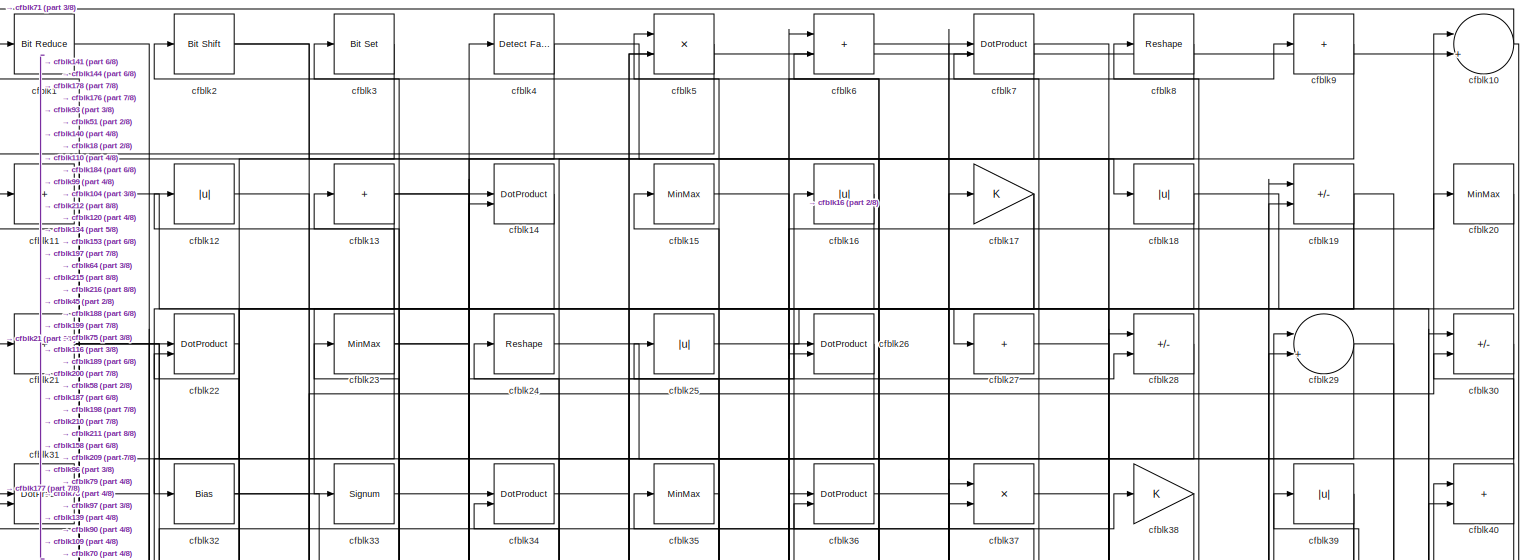
[diagram: root canvas - part 1/8, full width, top band]
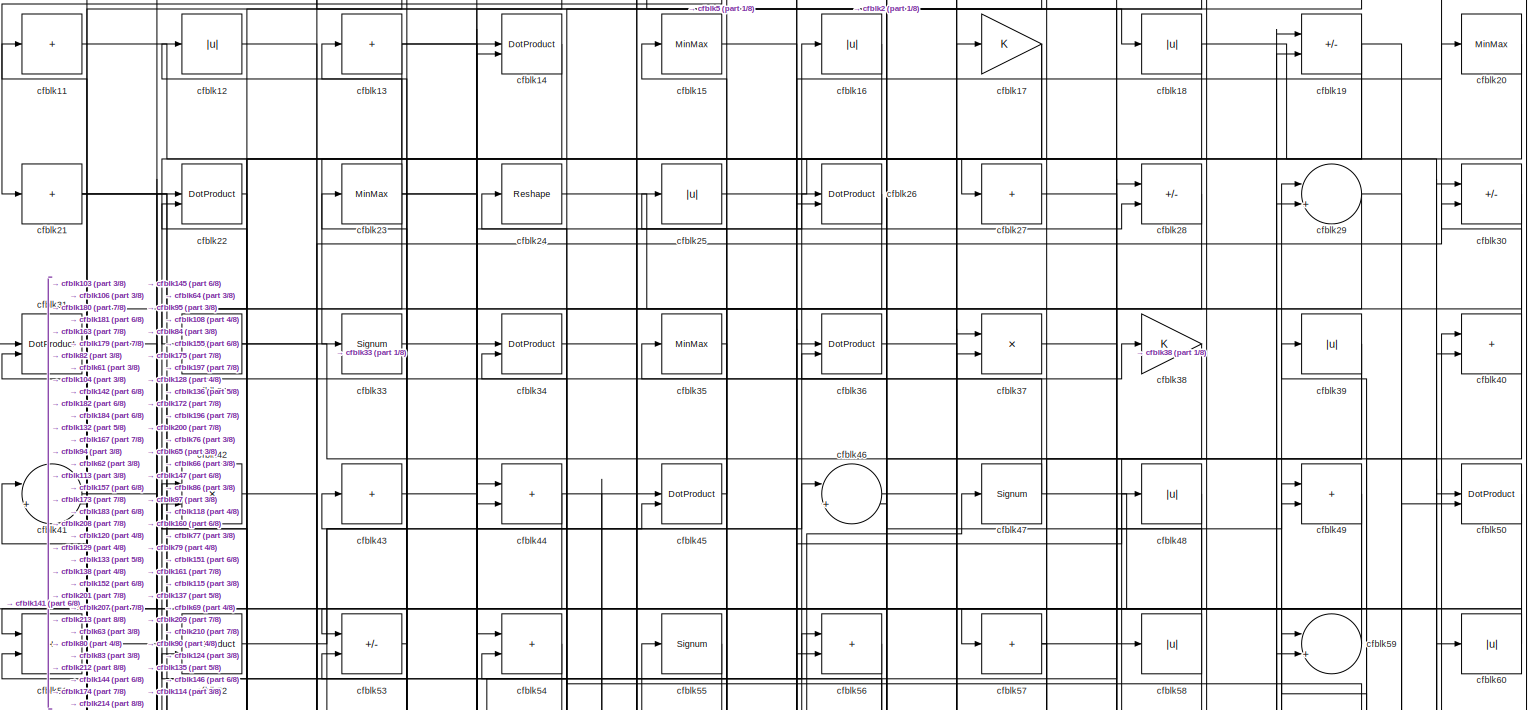
[diagram: root canvas - part 2/8, full width, top band]
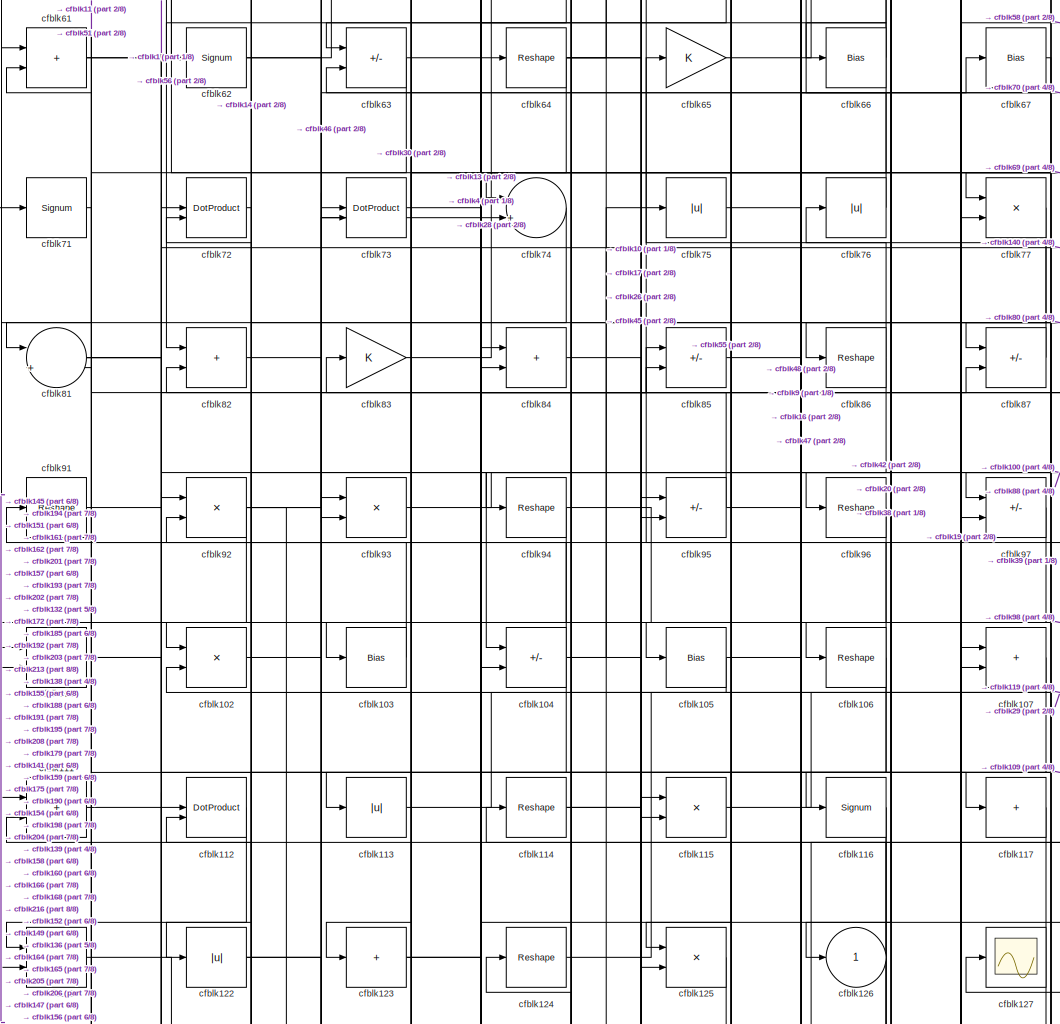
[diagram: root canvas - part 3/8, central region]
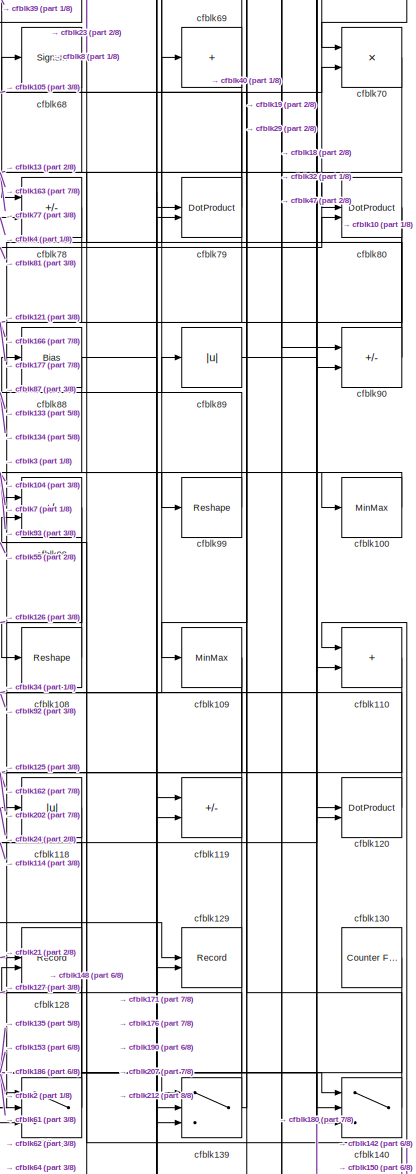
[diagram: root canvas - part 4/8, middle right region]
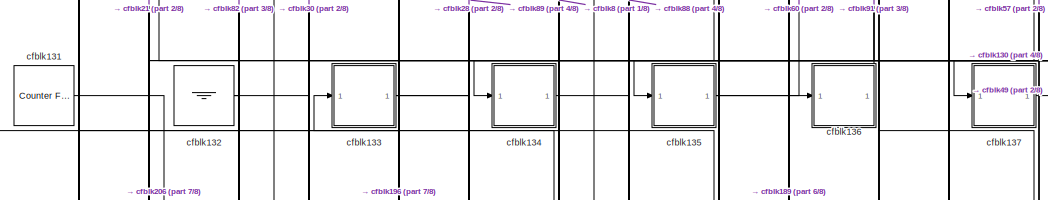
[diagram: root canvas - part 5/8, central region]
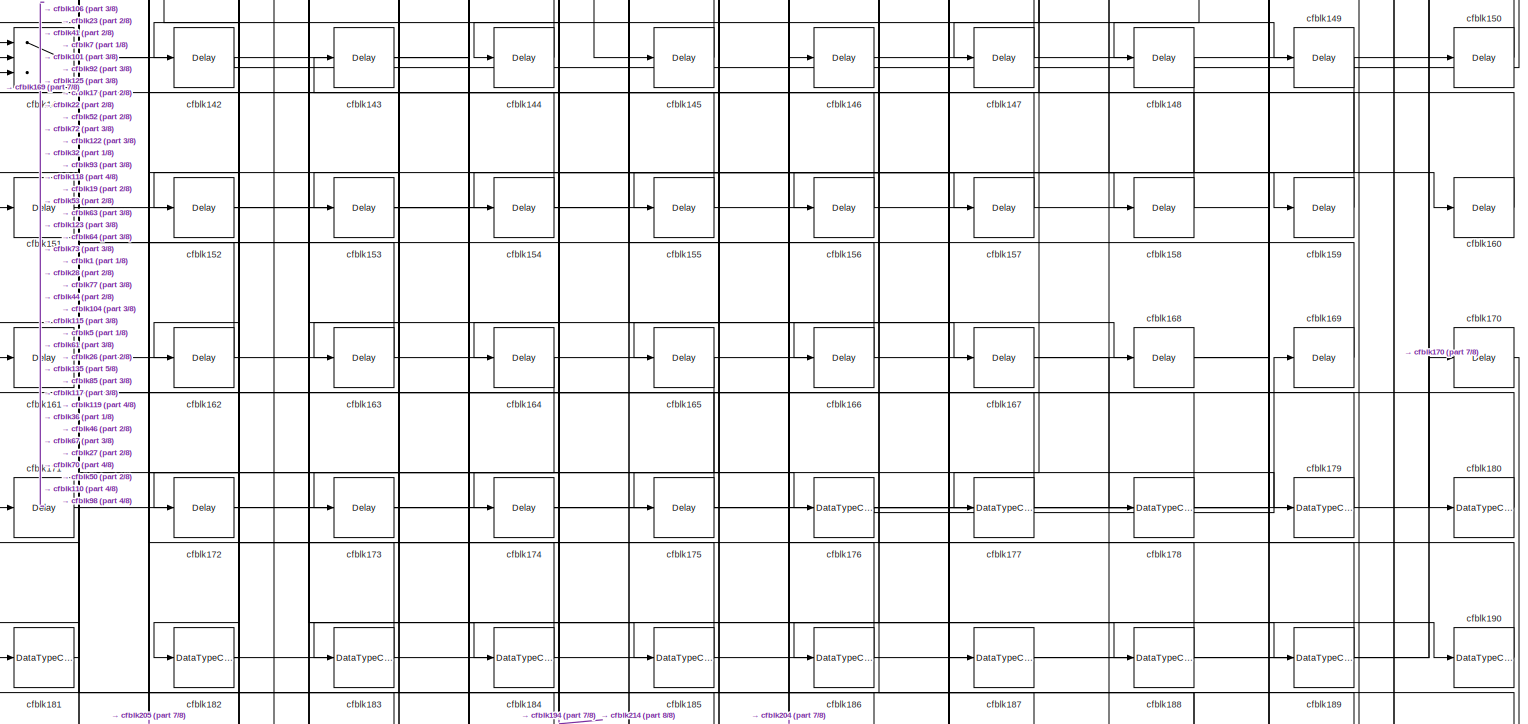
[diagram: root canvas - part 6/8, full width, bottom band]
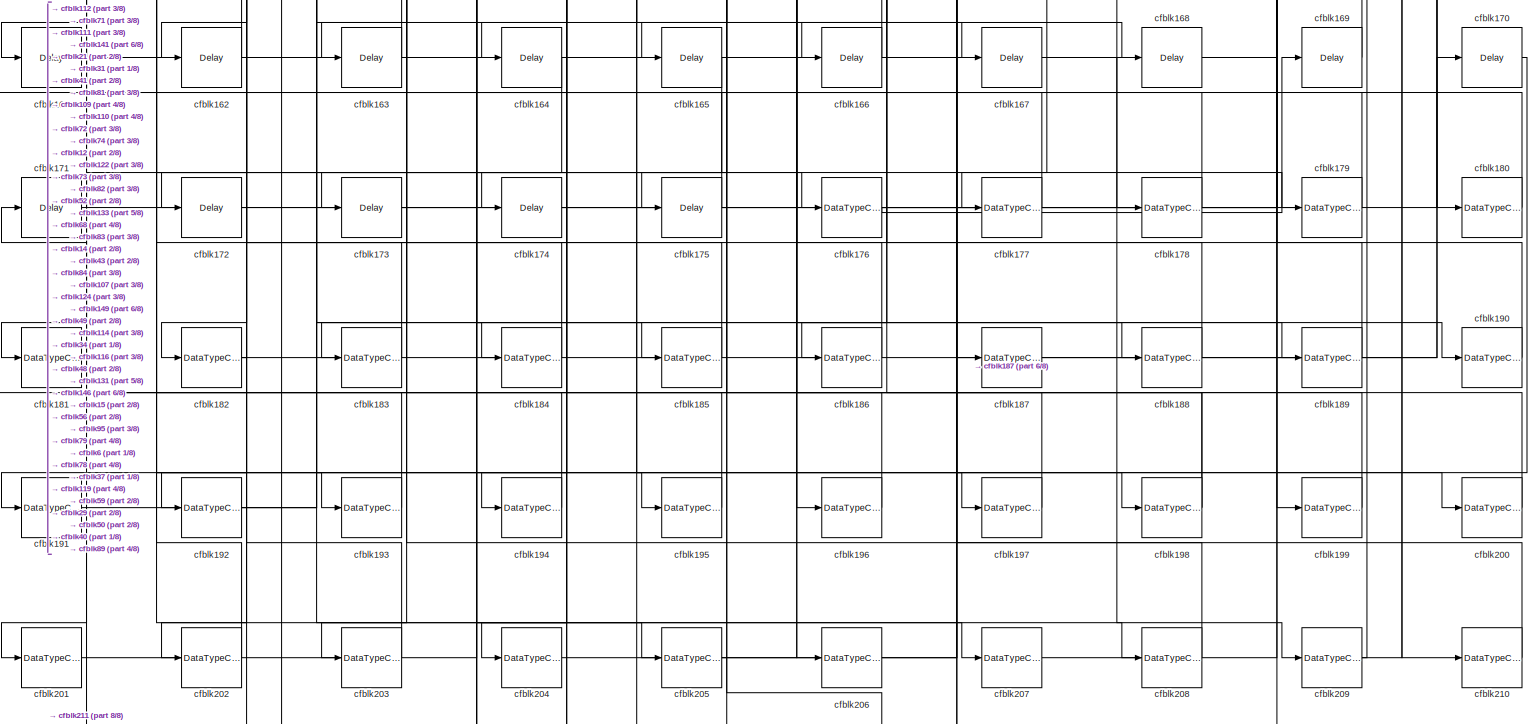
[diagram: root canvas - part 7/8, full width, bottom band]
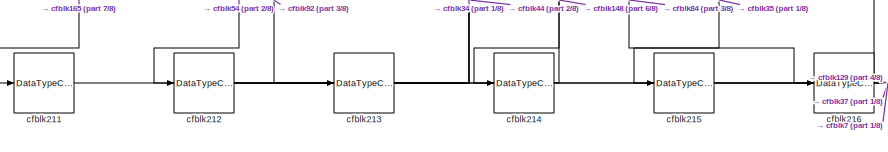
[diagram: root canvas - part 8/8, bottom left region]
MODEL slx_32f8b4926024
KIND model
CONFIG AbsTol = auto
CONFIG EnableMultiTasking = off
CONFIG FixedStep = auto
CONFIG MaxStep = auto
CONFIG MinStep = auto
CONFIG RelTol = 1e-3
CONFIG SampleTimeConstraint = Unconstrained
CONFIG SolverName = VariableStepAuto
CONFIG StartTime = 0.0
CONFIG StopTime = 10.0
BLOCK [Reference] cfblk1  REF=hdlsllib/Logic and Bit
Operations/Bit Reduce
  SourceBlock = hdlsllib/Logic and Bit\nOperations/Bit Reduce
  SourceType = Bit Reduce
BLOCK [Sum] cfblk10
  Inputs = |++
BLOCK [MinMax] cfblk100
BLOCK [Sum] cfblk101
  IconShape = rectangular
BLOCK [Product] cfblk102
  Inputs = */
  RndMeth = Zero
  SaturateOnIntegerOverflow = on
BLOCK [Bias] cfblk103
  Bias = 0.0
  SaturateOnIntegerOverflow = off
BLOCK [Sum] cfblk104
  IconShape = rectangular
  Inputs = +-
BLOCK [Bias] cfblk105
  Bias = 0.0
  SaturateOnIntegerOverflow = off
BLOCK [Reshape] cfblk106
BLOCK [Sum] cfblk107
  IconShape = rectangular
BLOCK [Reshape] cfblk108
BLOCK [MinMax] cfblk109
BLOCK [Sum] cfblk11
  IconShape = rectangular
  Inputs = +
BLOCK [Sum] cfblk110
  IconShape = rectangular
BLOCK [Sum] cfblk111
  IconShape = rectangular
BLOCK [DotProduct] cfblk112
  OutDataTypeStr = Inherit: Inherit via internal rule
BLOCK [Abs] cfblk113
  SaturateOnIntegerOverflow = off
BLOCK [Reshape] cfblk114
BLOCK [Product] cfblk115
  Inputs = */
  RndMeth = Zero
  SaturateOnIntegerOverflow = on
BLOCK [Signum] cfblk116
BLOCK [Sum] cfblk117
  IconShape = rectangular
  Inputs = +
BLOCK [Abs] cfblk118
  SaturateOnIntegerOverflow = off
BLOCK [Sum] cfblk119
  IconShape = rectangular
  Inputs = +-
BLOCK [Abs] cfblk12
  SaturateOnIntegerOverflow = off
BLOCK [DotProduct] cfblk120
  OutDataTypeStr = Inherit: Inherit via internal rule
BLOCK [Product] cfblk121
  Inputs = */
  RndMeth = Zero
  SaturateOnIntegerOverflow = on
BLOCK [Abs] cfblk122
  SaturateOnIntegerOverflow = off
BLOCK [Sum] cfblk123
  IconShape = rectangular
  Inputs = +
BLOCK [Reshape] cfblk124
BLOCK [Product] cfblk125
  Inputs = */
  RndMeth = Zero
  SaturateOnIntegerOverflow = on
BLOCK [Outport] cfblk126
  VectorParamsAs1DForOutWhenUnconnected = off
BLOCK [Scope] cfblk127
  Floating = off
  NumInputPorts = 1
  ScopeSpecificationString = Simulink.scopes.TimeScopeBlockCfg('CurrentConfiguration', extmgr.ConfigurationSet(extmgr.Configuration('Core','General UI',true),extmgr.Configuration('Core','Source UI',true),extmgr.Configuration('Sources','WiredSimulink',true,'DataLoggingVariableName','ScopeData2','DataLoggingSaveFormat','Array','DataLoggingLimitDataPoints',true,'DataLoggingDecimation','1'),extmgr.Configuration('Visuals','Time Do...<+868ch>
BLOCK [Record] cfblk128
  CompatibilityTag = XY
  FileSettingsInternal = {"entries":[{"content":{"excelSettings":{"content":{},"type":"Streamout.ExcelSettings"}},"type":"Streamout.FileSettingStorage","uuid":""}],"packageUris":["http:\/\/schema.mathworks.com\/mf0\/streamout_blocks\/R2020a"],"version":"1.0"}
  Layout = [1 1]
  SignalsInternal = {"entries":[{"content":{"signals":[{"content":{"blockPath":[],"dimensions":[1],"domain":"","lineColor":"#a2142f","plots":[1],"port":1,"signalID":1280,"signalName":"XY Graph:1"},"type":"RecordBlkView.Signal","uuid":""},{"content":{"blockPath":[],"dimensions":[1],"domain":"","lineColor":"#139fff","plots":[1],"port":2,"signalID":1283,"signalName":"XY Graph:2"},"type":"RecordBlkView.Signal","uuid":""}...<+146ch>
  VisualizationBindings = {"xyplotplugin":{"info":[{"series":[{"bindingParametersList":[{"parameter":"X-Axis","signalID":1280,"signalName":"XY Graph:1"},{"parameter":"Y-Axis","signalID":1283,"signalName":"XY Graph:2"}],"seriesID":5430}],"subplotID":1}]}}
  st = -1
BLOCK [Record] cfblk129
  CompatibilityTag = XY
  FileSettingsInternal = {"entries":[{"content":{"excelSettings":{"content":{},"type":"Streamout.ExcelSettings"}},"type":"Streamout.FileSettingStorage","uuid":""}],"packageUris":["http:\/\/schema.mathworks.com\/mf0\/streamout_blocks\/R2020a"],"version":"1.0"}
  Layout = [1 1]
  SignalsInternal = {"entries":[{"content":{"signals":[{"content":{"blockPath":[],"dimensions":[1],"domain":"","lineColor":"#a2142f","plots":[1],"port":1,"signalID":1288,"signalName":"XY Graph:1"},"type":"RecordBlkView.Signal","uuid":""},{"content":{"blockPath":[],"dimensions":[1],"domain":"","lineColor":"#139fff","plots":[1],"port":2,"signalID":1291,"signalName":"XY Graph:2"},"type":"RecordBlkView.Signal","uuid":""}...<+146ch>
  VisualizationBindings = {"xyplotplugin":{"info":[{"series":[{"bindingParametersList":[{"parameter":"X-Axis","signalID":1288,"signalName":"XY Graph:1"},{"parameter":"Y-Axis","signalID":1291,"signalName":"XY Graph:2"}],"seriesID":12827}],"subplotID":1}]}}
  st = -1
BLOCK [Sum] cfblk13
  IconShape = rectangular
  Inputs = +
BLOCK [Reference] cfblk130  REF=hdlsllib/Sources/Counter
Free-Running
  SourceBlock = hdlsllib/Sources/Counter\nFree-Running
  SourceType = Counter Free-Running
BLOCK [Reference] cfblk131  REF=hdlsllib/Sources/Counter
Free-Running
  SourceBlock = hdlsllib/Sources/Counter\nFree-Running
  SourceType = Counter Free-Running
BLOCK [Ground] cfblk132
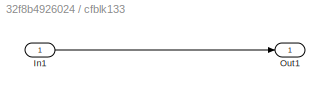
BLOCK [SubSystem] cfblk133
  LibrarySourceBlock = hdlsllib/Ports &\nSubsystems/Subsystem
BLOCK [Inport] cfblk133/In1
BLOCK [Outport] cfblk133/Out1
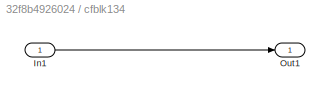
BLOCK [SubSystem] cfblk134
  LibrarySourceBlock = hdlsllib/Ports &\nSubsystems/Subsystem
BLOCK [Inport] cfblk134/In1
BLOCK [Outport] cfblk134/Out1
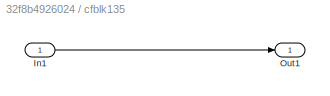
BLOCK [SubSystem] cfblk135
  LibrarySourceBlock = hdlsllib/Ports &\nSubsystems/Subsystem
BLOCK [Inport] cfblk135/In1
BLOCK [Outport] cfblk135/Out1
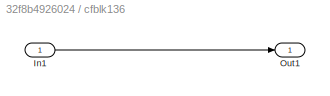
BLOCK [SubSystem] cfblk136
  LibrarySourceBlock = hdlsllib/Ports &\nSubsystems/Subsystem
BLOCK [Inport] cfblk136/In1
BLOCK [Outport] cfblk136/Out1
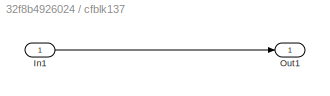
BLOCK [SubSystem] cfblk137
  LibrarySourceBlock = hdlsllib/Ports &\nSubsystems/Subsystem
BLOCK [Inport] cfblk137/In1
BLOCK [Outport] cfblk137/Out1
BLOCK [Switch] cfblk138
  InputSameDT = off
  SaturateOnIntegerOverflow = off
BLOCK [Switch] cfblk139
  InputSameDT = off
  SaturateOnIntegerOverflow = off
BLOCK [DotProduct] cfblk14
  OutDataTypeStr = Inherit: Inherit via internal rule
BLOCK [Switch] cfblk140
  InputSameDT = off
  SaturateOnIntegerOverflow = off
BLOCK [Switch] cfblk141
  InputSameDT = off
  SaturateOnIntegerOverflow = off
BLOCK [Delay] cfblk142
  InputPortMap = u0
  SampleTime = 1
BLOCK [Delay] cfblk143
  InputPortMap = u0
  SampleTime = 1
BLOCK [Delay] cfblk144
  InputPortMap = u0
  SampleTime = 1
BLOCK [Delay] cfblk145
  InputPortMap = u0
  SampleTime = 1
BLOCK [Delay] cfblk146
  InputPortMap = u0
  SampleTime = 1
BLOCK [Delay] cfblk147
  InputPortMap = u0
  SampleTime = 1
BLOCK [Delay] cfblk148
  InputPortMap = u0
  SampleTime = 1
BLOCK [Delay] cfblk149
  InputPortMap = u0
  SampleTime = 1
BLOCK [MinMax] cfblk15
BLOCK [Delay] cfblk150
  InputPortMap = u0
  SampleTime = 1
BLOCK [Delay] cfblk151
  InputPortMap = u0
  SampleTime = 1
BLOCK [Delay] cfblk152
  InputPortMap = u0
  SampleTime = 1
BLOCK [Delay] cfblk153
  InputPortMap = u0
  SampleTime = 1
BLOCK [Delay] cfblk154
  InputPortMap = u0
  SampleTime = 1
BLOCK [Delay] cfblk155
  InputPortMap = u0
  SampleTime = 1
BLOCK [Delay] cfblk156
  InputPortMap = u0
  SampleTime = 1
BLOCK [Delay] cfblk157
  InputPortMap = u0
  SampleTime = 1
BLOCK [Delay] cfblk158
  InputPortMap = u0
  SampleTime = 1
BLOCK [Delay] cfblk159
  InputPortMap = u0
  SampleTime = 1
BLOCK [Abs] cfblk16
  SaturateOnIntegerOverflow = off
BLOCK [Delay] cfblk160
  InputPortMap = u0
  SampleTime = 1
BLOCK [Delay] cfblk161
  InputPortMap = u0
  SampleTime = 1
BLOCK [Delay] cfblk162
  InputPortMap = u0
  SampleTime = 1
BLOCK [Delay] cfblk163
  InputPortMap = u0
  SampleTime = 1
BLOCK [Delay] cfblk164
  InputPortMap = u0
  SampleTime = 1
BLOCK [Delay] cfblk165
  InputPortMap = u0
  SampleTime = 1
BLOCK [Delay] cfblk166
  InputPortMap = u0
  SampleTime = 1
BLOCK [Delay] cfblk167
  InputPortMap = u0
  SampleTime = 1
BLOCK [Delay] cfblk168
  InputPortMap = u0
  SampleTime = 1
BLOCK [Delay] cfblk169
  InputPortMap = u0
  SampleTime = 1
BLOCK [Gain] cfblk17
BLOCK [Delay] cfblk170
  InputPortMap = u0
  SampleTime = 1
BLOCK [Delay] cfblk171
  InputPortMap = u0
  SampleTime = 1
BLOCK [Delay] cfblk172
  InputPortMap = u0
  SampleTime = 1
BLOCK [Delay] cfblk173
  InputPortMap = u0
  SampleTime = 1
BLOCK [Delay] cfblk174
  InputPortMap = u0
  SampleTime = 1
BLOCK [Delay] cfblk175
  InputPortMap = u0
  SampleTime = 1
BLOCK [DataTypeConversion] cfblk176
  RndMeth = Floor
  SaturateOnIntegerOverflow = off
BLOCK [DataTypeConversion] cfblk177
  OutDataTypeStr = uint8
  RndMeth = Floor
  SaturateOnIntegerOverflow = off
BLOCK [DataTypeConversion] cfblk178
  OutDataTypeStr = uint8
  RndMeth = Floor
  SaturateOnIntegerOverflow = off
BLOCK [DataTypeConversion] cfblk179
  OutDataTypeStr = uint8
  RndMeth = Floor
  SaturateOnIntegerOverflow = off
BLOCK [Abs] cfblk18
  SaturateOnIntegerOverflow = off
BLOCK [DataTypeConversion] cfblk180
  OutDataTypeStr = uint8
  RndMeth = Floor
  SaturateOnIntegerOverflow = off
BLOCK [DataTypeConversion] cfblk181
  OutDataTypeStr = uint8
  RndMeth = Floor
  SaturateOnIntegerOverflow = off
BLOCK [DataTypeConversion] cfblk182
  RndMeth = Floor
  SaturateOnIntegerOverflow = off
BLOCK [DataTypeConversion] cfblk183
  OutDataTypeStr = uint8
  RndMeth = Floor
  SaturateOnIntegerOverflow = off
BLOCK [DataTypeConversion] cfblk184
  OutDataTypeStr = uint8
  RndMeth = Floor
  SaturateOnIntegerOverflow = off
BLOCK [DataTypeConversion] cfblk185
  OutDataTypeStr = uint8
  RndMeth = Floor
  SaturateOnIntegerOverflow = off
BLOCK [DataTypeConversion] cfblk186
  OutDataTypeStr = uint8
  RndMeth = Floor
  SaturateOnIntegerOverflow = off
BLOCK [DataTypeConversion] cfblk187
  OutDataTypeStr = uint8
  RndMeth = Floor
  SaturateOnIntegerOverflow = off
BLOCK [DataTypeConversion] cfblk188
  OutDataTypeStr = uint8
  RndMeth = Floor
  SaturateOnIntegerOverflow = off
BLOCK [DataTypeConversion] cfblk189
  OutDataTypeStr = uint8
  RndMeth = Floor
  SaturateOnIntegerOverflow = off
BLOCK [Sum] cfblk19
  IconShape = rectangular
  Inputs = +-
BLOCK [DataTypeConversion] cfblk190
  OutDataTypeStr = uint8
  RndMeth = Floor
  SaturateOnIntegerOverflow = off
BLOCK [DataTypeConversion] cfblk191
  OutDataTypeStr = uint8
  RndMeth = Floor
  SaturateOnIntegerOverflow = off
BLOCK [DataTypeConversion] cfblk192
  OutDataTypeStr = uint8
  RndMeth = Floor
  SaturateOnIntegerOverflow = off
BLOCK [DataTypeConversion] cfblk193
  OutDataTypeStr = uint8
  RndMeth = Floor
  SaturateOnIntegerOverflow = off
BLOCK [DataTypeConversion] cfblk194
  OutDataTypeStr = uint8
  RndMeth = Floor
  SaturateOnIntegerOverflow = off
BLOCK [DataTypeConversion] cfblk195
  OutDataTypeStr = uint8
  RndMeth = Floor
  SaturateOnIntegerOverflow = off
BLOCK [DataTypeConversion] cfblk196
  OutDataTypeStr = uint8
  RndMeth = Floor
  SaturateOnIntegerOverflow = off
BLOCK [DataTypeConversion] cfblk197
  OutDataTypeStr = uint8
  RndMeth = Floor
  SaturateOnIntegerOverflow = off
BLOCK [DataTypeConversion] cfblk198
  RndMeth = Floor
  SaturateOnIntegerOverflow = off
BLOCK [DataTypeConversion] cfblk199
  OutDataTypeStr = uint8
  RndMeth = Floor
  SaturateOnIntegerOverflow = off
BLOCK [Reference] cfblk2  REF=hdlsllib/Logic and Bit
Operations/Bit Shift
  SourceBlock = hdlsllib/Logic and Bit\nOperations/Bit Shift
  SourceType = Bit Shift
BLOCK [MinMax] cfblk20
BLOCK [DataTypeConversion] cfblk200
  OutDataTypeStr = uint8
  RndMeth = Floor
  SaturateOnIntegerOverflow = off
BLOCK [DataTypeConversion] cfblk201
  OutDataTypeStr = uint8
  RndMeth = Floor
  SaturateOnIntegerOverflow = off
BLOCK [DataTypeConversion] cfblk202
  OutDataTypeStr = uint8
  RndMeth = Floor
  SaturateOnIntegerOverflow = off
BLOCK [DataTypeConversion] cfblk203
  OutDataTypeStr = uint8
  RndMeth = Floor
  SaturateOnIntegerOverflow = off
BLOCK [DataTypeConversion] cfblk204
  OutDataTypeStr = uint8
  RndMeth = Floor
  SaturateOnIntegerOverflow = off
BLOCK [DataTypeConversion] cfblk205
  OutDataTypeStr = uint8
  RndMeth = Floor
  SaturateOnIntegerOverflow = off
BLOCK [DataTypeConversion] cfblk206
  OutDataTypeStr = uint8
  RndMeth = Floor
  SaturateOnIntegerOverflow = off
BLOCK [DataTypeConversion] cfblk207
  OutDataTypeStr = uint8
  RndMeth = Floor
  SaturateOnIntegerOverflow = off
BLOCK [DataTypeConversion] cfblk208
  OutDataTypeStr = uint8
  RndMeth = Floor
  SaturateOnIntegerOverflow = off
BLOCK [DataTypeConversion] cfblk209
  RndMeth = Floor
  SaturateOnIntegerOverflow = off
BLOCK [Sum] cfblk21
  IconShape = rectangular
  Inputs = +
BLOCK [DataTypeConversion] cfblk210
  OutDataTypeStr = uint8
  RndMeth = Floor
  SaturateOnIntegerOverflow = off
BLOCK [DataTypeConversion] cfblk211
  OutDataTypeStr = uint8
  RndMeth = Floor
  SaturateOnIntegerOverflow = off
BLOCK [DataTypeConversion] cfblk212
  RndMeth = Floor
  SaturateOnIntegerOverflow = off
BLOCK [DataTypeConversion] cfblk213
  OutDataTypeStr = uint8
  RndMeth = Floor
  SaturateOnIntegerOverflow = off
BLOCK [DataTypeConversion] cfblk214
  OutDataTypeStr = uint8
  RndMeth = Floor
  SaturateOnIntegerOverflow = off
BLOCK [DataTypeConversion] cfblk215
  OutDataTypeStr = uint8
  RndMeth = Floor
  SaturateOnIntegerOverflow = off
BLOCK [DataTypeConversion] cfblk216
  OutDataTypeStr = uint8
  RndMeth = Floor
  SaturateOnIntegerOverflow = off
BLOCK [DotProduct] cfblk22
  OutDataTypeStr = Inherit: Inherit via internal rule
BLOCK [MinMax] cfblk23
BLOCK [Reshape] cfblk24
BLOCK [Abs] cfblk25
  SaturateOnIntegerOverflow = off
BLOCK [DotProduct] cfblk26
  OutDataTypeStr = Inherit: Inherit via internal rule
BLOCK [Sum] cfblk27
  IconShape = rectangular
  Inputs = +
BLOCK [Sum] cfblk28
  IconShape = rectangular
  Inputs = +-
BLOCK [Sum] cfblk29
  Inputs = |++
BLOCK [Reference] cfblk3  REF=simulink/Logic and Bit
Operations/Bit Set
  LibrarySourceBlock = hdlsllib/Logic and Bit\nOperations/Bit Set
  SourceBlock = simulink/Logic and Bit\nOperations/Bit Set
  SourceType = Bit Set
BLOCK [Sum] cfblk30
  IconShape = rectangular
  Inputs = +-
BLOCK [DotProduct] cfblk31
  OutDataTypeStr = Inherit: Inherit via internal rule
BLOCK [Bias] cfblk32
  Bias = 0.0
  SaturateOnIntegerOverflow = off
BLOCK [Signum] cfblk33
BLOCK [DotProduct] cfblk34
  OutDataTypeStr = Inherit: Inherit via internal rule
BLOCK [MinMax] cfblk35
BLOCK [DotProduct] cfblk36
  OutDataTypeStr = Inherit: Inherit via internal rule
BLOCK [Product] cfblk37
  Inputs = */
  RndMeth = Zero
  SaturateOnIntegerOverflow = on
BLOCK [Gain] cfblk38
BLOCK [Abs] cfblk39
  SaturateOnIntegerOverflow = off
BLOCK [Reference] cfblk4  REF=hdlsllib/Logic and Bit
Operations/Detect Fall
Negative
  SourceBlock = hdlsllib/Logic and Bit\nOperations/Detect Fall\nNegative
  SourceType = Detect Fall Negative
BLOCK [Sum] cfblk40
  IconShape = rectangular
BLOCK [Sum] cfblk41
  Inputs = |++
BLOCK [Product] cfblk42
  Inputs = */
  RndMeth = Zero
  SaturateOnIntegerOverflow = on
BLOCK [Sum] cfblk43
  IconShape = rectangular
  Inputs = +
BLOCK [Sum] cfblk44
  IconShape = rectangular
BLOCK [DotProduct] cfblk45
  OutDataTypeStr = Inherit: Inherit via internal rule
BLOCK [Sum] cfblk46
  Inputs = |++
BLOCK [Signum] cfblk47
BLOCK [Abs] cfblk48
  SaturateOnIntegerOverflow = off
BLOCK [Sum] cfblk49
  IconShape = rectangular
BLOCK [Product] cfblk5
  Inputs = */
  RndMeth = Zero
  SaturateOnIntegerOverflow = on
BLOCK [DotProduct] cfblk50
  OutDataTypeStr = Inherit: Inherit via internal rule
BLOCK [Sum] cfblk51
  IconShape = rectangular
BLOCK [DotProduct] cfblk52
  OutDataTypeStr = Inherit: Inherit via internal rule
BLOCK [Sum] cfblk53
  IconShape = rectangular
  Inputs = +-
BLOCK [Sum] cfblk54
  IconShape = rectangular
BLOCK [Signum] cfblk55
BLOCK [Sum] cfblk56
  IconShape = rectangular
BLOCK [Sum] cfblk57
  IconShape = rectangular
  Inputs = +
BLOCK [Abs] cfblk58
  SaturateOnIntegerOverflow = off
BLOCK [Sum] cfblk59
  Inputs = |++
BLOCK [Sum] cfblk6
  IconShape = rectangular
BLOCK [Abs] cfblk60
  SaturateOnIntegerOverflow = off
BLOCK [Sum] cfblk61
  IconShape = rectangular
BLOCK [Signum] cfblk62
BLOCK [Sum] cfblk63
  IconShape = rectangular
  Inputs = +-
BLOCK [Reshape] cfblk64
BLOCK [Gain] cfblk65
BLOCK [Bias] cfblk66
  Bias = 0.0
  SaturateOnIntegerOverflow = off
BLOCK [Bias] cfblk67
  Bias = 0.0
  SaturateOnIntegerOverflow = off
BLOCK [Signum] cfblk68
BLOCK [Sum] cfblk69
  IconShape = rectangular
  Inputs = +
BLOCK [DotProduct] cfblk7
  OutDataTypeStr = Inherit: Inherit via internal rule
BLOCK [Product] cfblk70
  Inputs = */
  RndMeth = Zero
  SaturateOnIntegerOverflow = on
BLOCK [Signum] cfblk71
BLOCK [DotProduct] cfblk72
  OutDataTypeStr = Inherit: Inherit via internal rule
BLOCK [DotProduct] cfblk73
  OutDataTypeStr = Inherit: Inherit via internal rule
BLOCK [Sum] cfblk74
  Inputs = |++
BLOCK [Abs] cfblk75
  SaturateOnIntegerOverflow = off
BLOCK [Abs] cfblk76
  SaturateOnIntegerOverflow = off
BLOCK [Product] cfblk77
  Inputs = */
  RndMeth = Zero
  SaturateOnIntegerOverflow = on
BLOCK [Sum] cfblk78
  IconShape = rectangular
  Inputs = +-
BLOCK [DotProduct] cfblk79
  OutDataTypeStr = Inherit: Inherit via internal rule
BLOCK [Reshape] cfblk8
BLOCK [DotProduct] cfblk80
  OutDataTypeStr = Inherit: Inherit via internal rule
BLOCK [Sum] cfblk81
  Inputs = |++
BLOCK [Sum] cfblk82
  IconShape = rectangular
BLOCK [Gain] cfblk83
BLOCK [Sum] cfblk84
  IconShape = rectangular
BLOCK [Sum] cfblk85
  IconShape = rectangular
  Inputs = +-
BLOCK [Reshape] cfblk86
BLOCK [Sum] cfblk87
  IconShape = rectangular
  Inputs = +-
BLOCK [Bias] cfblk88
  Bias = 0.0
  SaturateOnIntegerOverflow = off
BLOCK [Abs] cfblk89
  SaturateOnIntegerOverflow = off
BLOCK [Sum] cfblk9
  IconShape = rectangular
  Inputs = +
BLOCK [Sum] cfblk90
  IconShape = rectangular
  Inputs = +-
BLOCK [Reshape] cfblk91
BLOCK [Product] cfblk92
  Inputs = */
  RndMeth = Zero
  SaturateOnIntegerOverflow = on
BLOCK [Product] cfblk93
  Inputs = */
  RndMeth = Zero
  SaturateOnIntegerOverflow = on
BLOCK [Reshape] cfblk94
BLOCK [Sum] cfblk95
  IconShape = rectangular
  Inputs = +-
BLOCK [Reshape] cfblk96
BLOCK [Sum] cfblk97
  IconShape = rectangular
  Inputs = +-
BLOCK [Sum] cfblk98
  IconShape = rectangular
  Inputs = +-
BLOCK [Reshape] cfblk99
LINE cfblk100:1 -> cfblk98:1
NET cfblk101:1 -> cfblk117:1, cfblk157:1
LINE cfblk102:1 -> cfblk67:1
LINE cfblk103:1 -> cfblk51:2
NET cfblk104:1 -> cfblk123:1, cfblk158:1, cfblk42:1, cfblk75:1
NET cfblk105:1 -> cfblk102:2, cfblk70:2
NET cfblk106:1 -> cfblk11:1, cfblk125:1, cfblk151:1
LINE cfblk107:1 -> cfblk204:1
LINE cfblk108:1 -> cfblk55:1
NET cfblk109:1 -> cfblk125:2, cfblk162:1
NET cfblk10:1 -> cfblk70:1, cfblk71:1
LINE cfblk110:1 -> cfblk202:1
LINE cfblk111:1 -> cfblk193:1
LINE cfblk112:1 -> cfblk201:1
LINE cfblk113:1 -> cfblk19:2
NET cfblk114:1 -> cfblk168:1, cfblk26:1
LINE cfblk115:1 -> cfblk29:1
NET cfblk116:1 -> cfblk164:1, cfblk165:1
LINE cfblk117:1 -> cfblk156:1
LINE cfblk118:1 -> cfblk153:1
NET cfblk119:1 -> cfblk186:1, cfblk92:2
LINE cfblk11:1 -> cfblk58:1
LINE cfblk120:1 -> cfblk34:2
LINE cfblk121:1 -> cfblk139:1
NET cfblk122:1 -> cfblk188:1, cfblk208:1
NET cfblk123:1 -> cfblk159:1, cfblk87:2
LINE cfblk124:1 -> cfblk30:1
LINE cfblk125:1 -> cfblk152:1
LINE cfblk12:1 -> cfblk167:1
LINE cfblk130:1 -> cfblk135:1
LINE cfblk131:1 -> cfblk206:1
NET cfblk132:1 -> cfblk30:2, cfblk82:2
LINE cfblk133/In1:1 -> cfblk133/Out1:1
NET cfblk133:1 -> cfblk28:2, cfblk89:1
LINE cfblk134/In1:1 -> cfblk134/Out1:1
LINE cfblk134:1 -> cfblk88:1
LINE cfblk135/In1:1 -> cfblk135/Out1:1
NET cfblk135:1 -> cfblk189:1, cfblk60:1
LINE cfblk136/In1:1 -> cfblk136/Out1:1
LINE cfblk136:1 -> cfblk91:1
LINE cfblk137/In1:1 -> cfblk137/Out1:1
LINE cfblk137:1 -> cfblk49:1
NET cfblk138:1 -> cfblk114:1, cfblk128:2
NET cfblk139:1 -> cfblk127:1, cfblk39:1
NET cfblk13:1 -> cfblk129:1, cfblk80:1, cfblk82:1
LINE cfblk140:1 -> cfblk69:1
NET cfblk141:1 -> cfblk205:1, cfblk64:1
LINE cfblk142:1 -> cfblk110:1
LINE cfblk143:1 -> cfblk185:1
LINE cfblk144:1 -> cfblk1:1
LINE cfblk145:1 -> cfblk61:1
LINE cfblk146:1 -> cfblk50:1
LINE cfblk147:1 -> cfblk46:2
LINE cfblk148:1 -> cfblk214:1
LINE cfblk149:1 -> cfblk194:1
LINE cfblk14:1 -> cfblk62:1
LINE cfblk150:1 -> cfblk98:2
LINE cfblk151:1 -> cfblk19:1
LINE cfblk152:1 -> cfblk44:1
LINE cfblk153:1 -> cfblk5:2
LINE cfblk154:1 -> cfblk63:2
LINE cfblk155:1 -> cfblk93:1
LINE cfblk156:1 -> cfblk101:1
LINE cfblk157:1 -> cfblk53:2
LINE cfblk158:1 -> cfblk7:2
LINE cfblk159:1 -> cfblk92:1
LINE cfblk15:1 -> cfblk196:1
LINE cfblk160:1 -> cfblk115:1
LINE cfblk161:1 -> cfblk29:2
LINE cfblk162:1 -> cfblk81:2
LINE cfblk163:1 -> cfblk52:1
LINE cfblk164:1 -> cfblk203:1
LINE cfblk165:1 -> cfblk211:1
LINE cfblk166:1 -> cfblk95:1
LINE cfblk167:1 -> cfblk178:1
LINE cfblk168:1 -> cfblk199:1
LINE cfblk169:1 -> cfblk141:3
LINE cfblk16:1 -> cfblk33:1
LINE cfblk170:1 -> cfblk191:1
LINE cfblk171:1 -> cfblk119:2
LINE cfblk172:1 -> cfblk56:2
LINE cfblk173:1 -> cfblk14:2
LINE cfblk174:1 -> cfblk59:2
LINE cfblk175:1 -> cfblk84:1
NET cfblk176:1 -> cfblk169:1, cfblk40:2, cfblk79:2
LINE cfblk177:1 -> cfblk31:1
LINE cfblk178:1 -> cfblk31:2
LINE cfblk179:1 -> cfblk83:1
NET cfblk17:1 -> cfblk142:1, cfblk95:2
LINE cfblk180:1 -> cfblk41:1
LINE cfblk181:1 -> cfblk41:2
NET cfblk182:1 -> cfblk150:1, cfblk52:2
LINE cfblk183:1 -> cfblk22:1
LINE cfblk184:1 -> cfblk22:2
LINE cfblk185:1 -> cfblk72:2
LINE cfblk186:1 -> cfblk143:1
LINE cfblk187:1 -> cfblk170:1
LINE cfblk188:1 -> cfblk36:1
LINE cfblk189:1 -> cfblk36:2
NET cfblk18:1 -> cfblk120:1, cfblk26:2
LINE cfblk190:1 -> cfblk119:1
LINE cfblk191:1 -> cfblk73:1
LINE cfblk192:1 -> cfblk73:2
LINE cfblk193:1 -> cfblk72:1
LINE cfblk194:1 -> cfblk111:1
LINE cfblk195:1 -> cfblk111:2
LINE cfblk196:1 -> cfblk133:1
LINE cfblk197:1 -> cfblk15:1
NET cfblk198:1 -> cfblk124:1, cfblk171:1
LINE cfblk199:1 -> cfblk6:1
NET cfblk19:1 -> cfblk183:1, cfblk90:1, cfblk97:2
LINE cfblk1:1 -> cfblk93:2
LINE cfblk200:1 -> cfblk6:2
LINE cfblk201:1 -> cfblk14:1
LINE cfblk202:1 -> cfblk112:1
LINE cfblk203:1 -> cfblk112:2
LINE cfblk204:1 -> cfblk146:1
LINE cfblk205:1 -> cfblk107:1
LINE cfblk206:1 -> cfblk107:2
LINE cfblk207:1 -> cfblk79:1
LINE cfblk208:1 -> cfblk43:1
NET cfblk209:1 -> cfblk50:2, cfblk59:1
LINE cfblk20:1 -> cfblk86:1
LINE cfblk210:1 -> cfblk37:1
LINE cfblk211:1 -> cfblk37:2
NET cfblk212:1 -> cfblk129:2, cfblk34:1, cfblk44:2
LINE cfblk213:1 -> cfblk54:1
LINE cfblk214:1 -> cfblk54:2
LINE cfblk215:1 -> cfblk7:1
LINE cfblk216:1 -> cfblk35:1
NET cfblk21:1 -> cfblk128:1, cfblk136:1, cfblk200:1
LINE cfblk22:1 -> cfblk182:1
NET cfblk23:1 -> cfblk120:2, cfblk12:1, cfblk138:2, cfblk181:1
LINE cfblk24:1 -> cfblk118:1
LINE cfblk25:1 -> cfblk27:1
LINE cfblk26:1 -> cfblk155:1
LINE cfblk27:1 -> cfblk160:1
LINE cfblk28:1 -> cfblk144:1
NET cfblk29:1 -> cfblk138:3, cfblk210:1
NET cfblk2:1 -> cfblk140:1, cfblk18:1
LINE cfblk30:1 -> cfblk113:1
LINE cfblk31:1 -> cfblk176:1
NET cfblk32:1 -> cfblk110:2, cfblk184:1
LINE cfblk33:1 -> cfblk4:1
LINE cfblk34:1 -> cfblk197:1
LINE cfblk35:1 -> cfblk215:1
LINE cfblk36:1 -> cfblk187:1
LINE cfblk37:1 -> cfblk209:1
LINE cfblk38:1 -> cfblk96:1
NET cfblk39:1 -> cfblk78:1, cfblk97:1
LINE cfblk3:1 -> cfblk32:1
NET cfblk40:1 -> cfblk109:1, cfblk10:1
LINE cfblk41:1 -> cfblk179:1
LINE cfblk42:1 -> cfblk94:1
LINE cfblk43:1 -> cfblk207:1
NET cfblk44:1 -> cfblk141:2, cfblk145:1
LINE cfblk45:1 -> cfblk5:1
LINE cfblk46:1 -> cfblk17:1
NET cfblk47:1 -> cfblk25:1, cfblk90:2
LINE cfblk48:1 -> cfblk175:1
NET cfblk49:1 -> cfblk173:1, cfblk174:1
NET cfblk4:1 -> cfblk104:2, cfblk78:2
LINE cfblk50:1 -> cfblk53:1
LINE cfblk51:1 -> cfblk38:1
LINE cfblk52:1 -> cfblk20:1
LINE cfblk53:1 -> cfblk13:1
LINE cfblk54:1 -> cfblk212:1
LINE cfblk55:1 -> cfblk84:2
LINE cfblk56:1 -> cfblk66:1
NET cfblk57:1 -> cfblk137:1, cfblk49:2
NET cfblk58:1 -> cfblk2:1, cfblk77:2
LINE cfblk59:1 -> cfblk57:1
LINE cfblk5:1 -> cfblk21:1
LINE cfblk60:1 -> cfblk51:1
NET cfblk61:1 -> cfblk139:2, cfblk56:1
NET cfblk62:1 -> cfblk138:1, cfblk46:1
NET cfblk63:1 -> cfblk45:2, cfblk81:1
NET cfblk64:1 -> cfblk103:1, cfblk10:2, cfblk139:3, cfblk45:1
LINE cfblk65:1 -> cfblk47:1
NET cfblk66:1 -> cfblk42:2, cfblk63:1, cfblk74:1
LINE cfblk67:1 -> cfblk147:1
LINE cfblk68:1 -> cfblk163:1
NET cfblk69:1 -> cfblk24:1, cfblk77:1
LINE cfblk6:1 -> cfblk198:1
LINE cfblk70:1 -> cfblk148:1
LINE cfblk71:1 -> cfblk161:1
LINE cfblk72:1 -> cfblk192:1
LINE cfblk73:1 -> cfblk190:1
LINE cfblk74:1 -> cfblk172:1
LINE cfblk75:1 -> cfblk9:1
LINE cfblk76:1 -> cfblk16:1
LINE cfblk77:1 -> cfblk154:1
LINE cfblk78:1 -> cfblk177:1
NET cfblk79:1 -> cfblk166:1, cfblk23:1, cfblk8:1
NET cfblk7:1 -> cfblk141:1, cfblk99:1
NET cfblk80:1 -> cfblk121:2, cfblk87:1
NET cfblk81:1 -> cfblk115:2, cfblk140:2, cfblk80:2
LINE cfblk82:1 -> cfblk195:1
LINE cfblk83:1 -> cfblk28:1
LINE cfblk84:1 -> cfblk216:1
LINE cfblk85:1 -> cfblk149:1
NET cfblk86:1 -> cfblk122:1, cfblk76:1
LINE cfblk87:1 -> cfblk65:1
NET cfblk88:1 -> cfblk104:1, cfblk140:3
LINE cfblk89:1 -> cfblk180:1
LINE cfblk8:1 -> cfblk134:1
NET cfblk90:1 -> cfblk40:1, cfblk68:1
LINE cfblk91:1 -> cfblk85:1
NET cfblk92:1 -> cfblk121:1, cfblk213:1, cfblk74:2, cfblk85:2
LINE cfblk93:1 -> cfblk100:1
NET cfblk94:1 -> cfblk101:2, cfblk106:1
NET cfblk95:1 -> cfblk48:1, cfblk61:2
LINE cfblk96:1 -> cfblk105:1
LINE cfblk97:1 -> cfblk102:1
NET cfblk98:1 -> cfblk108:1, cfblk126:1
LINE cfblk99:1 -> cfblk3:1
LINE cfblk9:1 -> cfblk116:1
note: NET lines group one-source signal fan-out (src -> all destinations, sorted); 1:1 wires keep LINE
